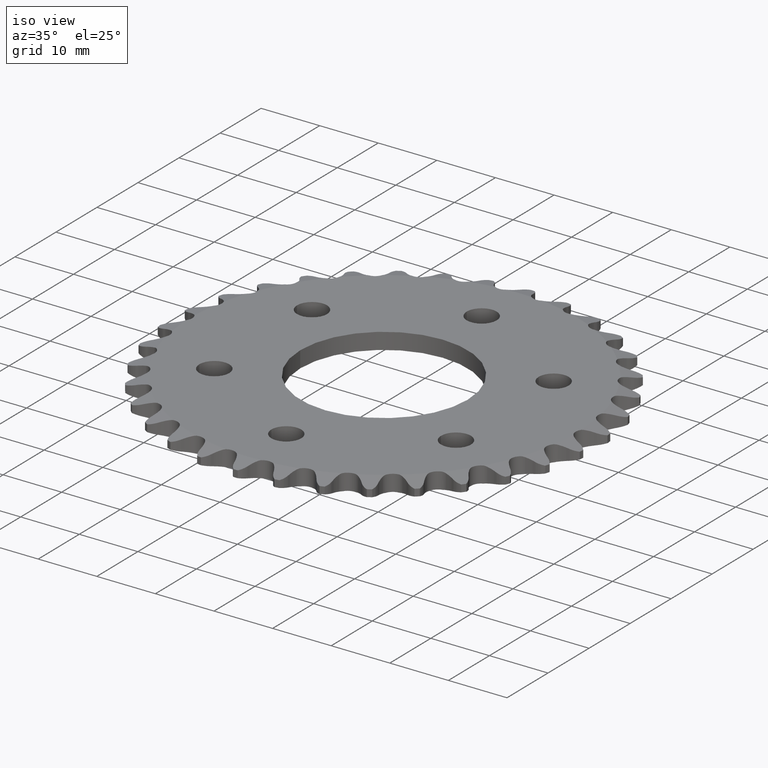
[diagram: clean part render]
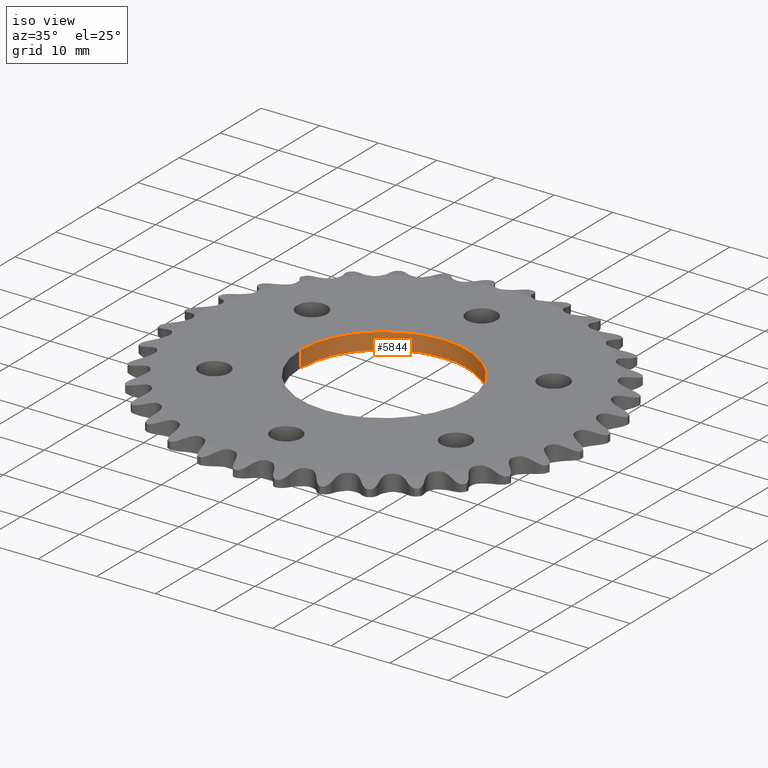
[diagram: same view with one face highlighted and labeled with its STEP entity id]
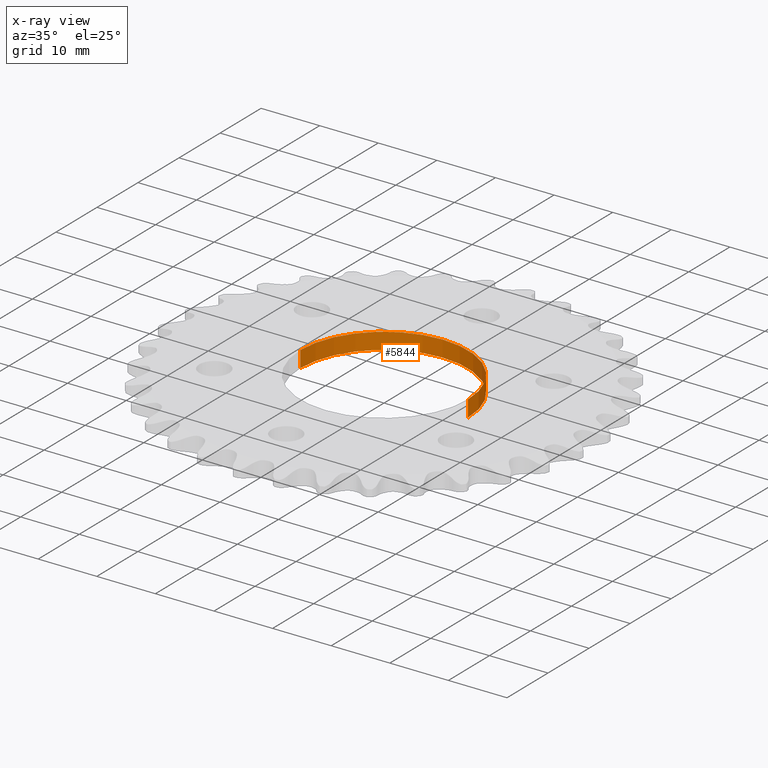
[diagram: x-ray of the same camera — body ghosted, the highlighted face saturated]
A machine part, iso view. The second image highlights one B-rep face of the part: STEP entity #5844.
The next image is the same camera in x-ray: the body ghosted, the highlighted face saturated — about 0% of this face is hidden behind the body in this view.
In plain terms, the highlighted cylindrical surface (partial cylindrical patch) has radius 14.2875 mm, axis along (-0, -0, 1).
Its self-contained STEP definition (entity closure, byte-faithful):
#376 = EDGE_CURVE ( 'NONE', #8774, #1274, #11970, .T. ) ;
#1262 = CYLINDRICAL_SURFACE ( 'NONE', #11386, 0.5625000000000001110 ) ;
#1274 = VERTEX_POINT ( 'NONE', #12420 ) ;
#1688 = ORIENTED_EDGE ( 'NONE', *, *, #3146, .F. ) ;
#1710 = DIRECTION ( 'NONE',  ( 1.000000000000000000, 0.0000000000000000000, 0.0000000000000000000 ) ) ;
#1855 = LINE ( 'NONE', #3909, #5589 ) ;
#2131 = CARTESIAN_POINT ( 'NONE',  ( 0.5625000000000001110, 0.0000000000000000000, -0.05500000000000000028 ) ) ;
#2229 = ORIENTED_EDGE ( 'NONE', *, *, #376, .T. ) ;
#2256 = AXIS2_PLACEMENT_3D ( 'NONE', #9183, #2958, #3990 ) ;
#2958 = DIRECTION ( 'NONE',  ( 0.0000000000000000000, 0.0000000000000000000, 1.000000000000000000 ) ) ;
#3146 = EDGE_CURVE ( 'NONE', #9006, #5236, #9829, .T. ) ;
#3203 = DIRECTION ( 'NONE',  ( -0.0000000000000000000, -0.0000000000000000000, 1.000000000000000000 ) ) ;
#3329 = ORIENTED_EDGE ( 'NONE', *, *, #6809, .T. ) ;
#3629 = CARTESIAN_POINT ( 'NONE',  ( 0.5625000000000001110, 0.0000000000000000000, -0.05500000000000000028 ) ) ;
#3909 = CARTESIAN_POINT ( 'NONE',  ( -0.5625000000000001110, 6.888638245203861944E-17, -0.05500000000000000028 ) ) ;
#3990 = DIRECTION ( 'NONE',  ( 1.000000000000000000, 0.0000000000000000000, 0.0000000000000000000 ) ) ;
#4202 = EDGE_LOOP ( 'NONE', ( #11695, #1688, #3329, #2229 ) ) ;
#4388 = AXIS2_PLACEMENT_3D ( 'NONE', #4925, #4973, #1710 ) ;
#4925 = CARTESIAN_POINT ( 'NONE',  ( 0.0000000000000000000, 0.0000000000000000000, -0.05500000000000000028 ) ) ;
#4973 = DIRECTION ( 'NONE',  ( 0.0000000000000000000, 0.0000000000000000000, 1.000000000000000000 ) ) ;
#5236 = VERTEX_POINT ( 'NONE', #13480 ) ;
#5589 = VECTOR ( 'NONE', #10215, 39.37007874015748143 ) ;
#5617 = VECTOR ( 'NONE', #3203, 39.37007874015748143 ) ;
#5844 = ADVANCED_FACE ( 'NONE', ( #9238 ), #1262, .F. ) ;
#6809 = EDGE_CURVE ( 'NONE', #9006, #8774, #13265, .T. ) ;
#7902 = DIRECTION ( 'NONE',  ( -0.0000000000000000000, -0.0000000000000000000, 1.000000000000000000 ) ) ;
#7954 = CARTESIAN_POINT ( 'NONE',  ( 0.5625000000000001110, 0.0000000000000000000, 0.05500000000000000028 ) ) ;
#8774 = VERTEX_POINT ( 'NONE', #7954 ) ;
#8960 = DIRECTION ( 'NONE',  ( 1.000000000000000000, 0.0000000000000000000, 0.0000000000000000000 ) ) ;
#9006 = VERTEX_POINT ( 'NONE', #3629 ) ;
#9183 = CARTESIAN_POINT ( 'NONE',  ( 0.0000000000000000000, 0.0000000000000000000, 0.05500000000000000028 ) ) ;
#9238 = FACE_OUTER_BOUND ( 'NONE', #4202, .T. ) ;
#9249 = EDGE_CURVE ( 'NONE', #5236, #1274, #1855, .T. ) ;
#9829 = CIRCLE ( 'NONE', #4388, 0.5625000000000001110 ) ;
#10215 = DIRECTION ( 'NONE',  ( -0.0000000000000000000, -0.0000000000000000000, 1.000000000000000000 ) ) ;
#11386 = AXIS2_PLACEMENT_3D ( 'NONE', #13095, #7902, #8960 ) ;
#11695 = ORIENTED_EDGE ( 'NONE', *, *, #9249, .F. ) ;
#11970 = CIRCLE ( 'NONE', #2256, 0.5625000000000001110 ) ;
#12420 = CARTESIAN_POINT ( 'NONE',  ( -0.5625000000000001110, 6.888638245203861944E-17, 0.05500000000000000028 ) ) ;
#13095 = CARTESIAN_POINT ( 'NONE',  ( 0.0000000000000000000, 0.0000000000000000000, -0.05500000000000000028 ) ) ;
#13265 = LINE ( 'NONE', #2131, #5617 ) ;
#13480 = CARTESIAN_POINT ( 'NONE',  ( -0.5625000000000001110, 6.888638245203861944E-17, -0.05500000000000000028 ) ) ;